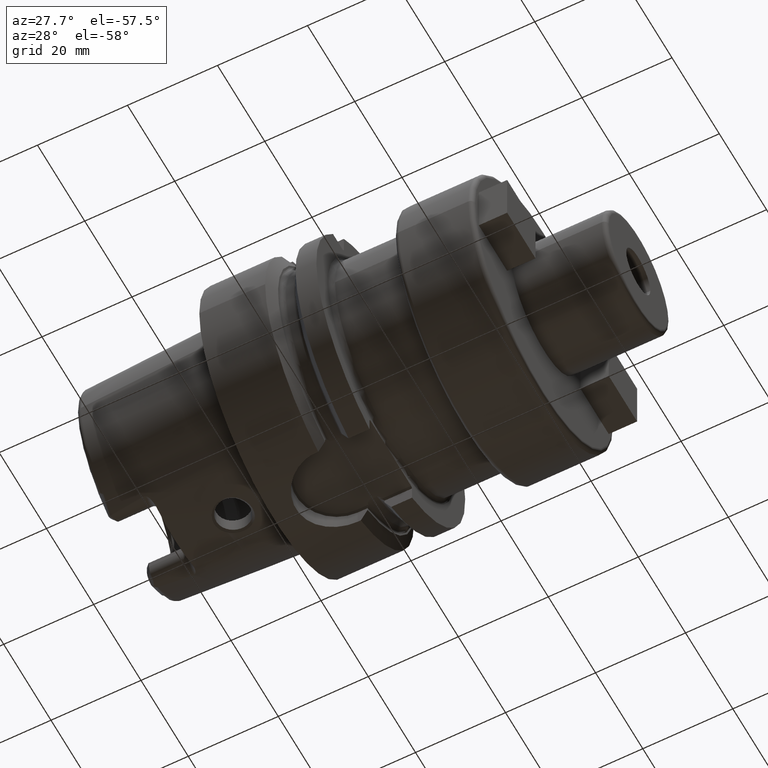
[diagram: clean part render]
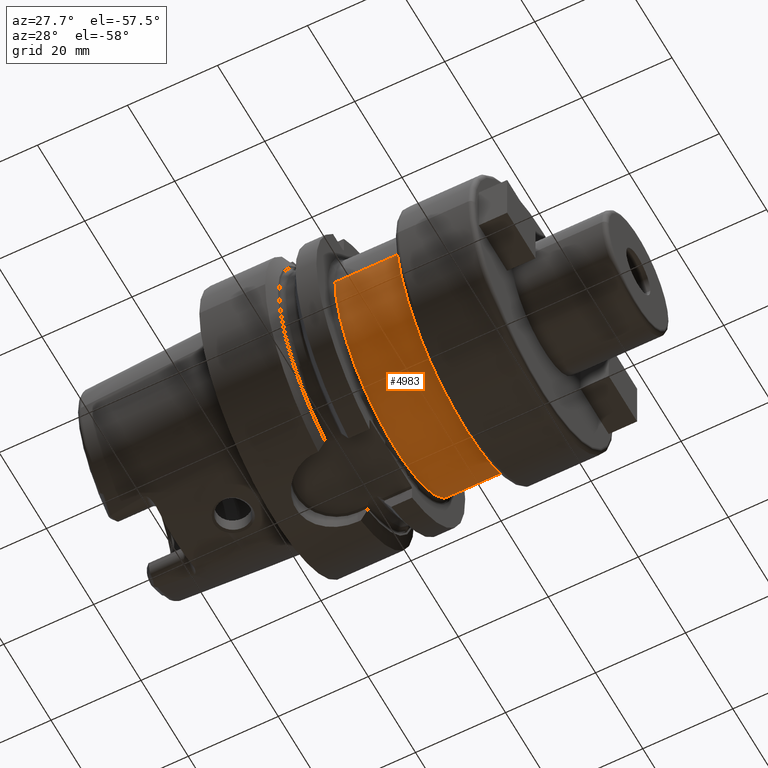
[diagram: same view with one face highlighted and labeled with its STEP entity id]
A machine part, auxiliary view. The second image highlights one B-rep face of the part: STEP entity #4983.
In plain terms, the highlighted cylindrical surface (partial cylindrical patch) has radius 25.5 mm, axis along (1, 0, 0).
Its self-contained STEP definition (entity closure, byte-faithful):
#1421=CARTESIAN_POINT('',(2.7E1,0.E0,0.E0));
#1422=DIRECTION('',(1.E0,0.E0,0.E0));
#1423=DIRECTION('',(0.E0,-1.E0,0.E0));
#1424=AXIS2_PLACEMENT_3D('',#1421,#1422,#1423);
#1450=CARTESIAN_POINT('',(4.15E1,0.E0,0.E0));
#1451=DIRECTION('',(-1.E0,0.E0,0.E0));
#1452=DIRECTION('',(0.E0,1.E0,0.E0));
#1453=AXIS2_PLACEMENT_3D('',#1450,#1451,#1452);
#1455=DIRECTION('',(1.E0,0.E0,6.572574142027E-14));
#1456=VECTOR('',#1455,1.45E1);
#1457=CARTESIAN_POINT('',(2.7E1,2.55E1,-2.658297192799E-13));
#1458=LINE('',#1457,#1456);
#1459=DIRECTION('',(1.E0,0.E0,-5.925695159419E-14));
#1460=VECTOR('',#1459,1.45E1);
#1461=CARTESIAN_POINT('',(2.7E1,-2.55E1,1.738605785752E-13));
#1462=LINE('',#1461,#1460);
#3355=CARTESIAN_POINT('',(4.15E1,2.55E1,0.E0));
#3356=CARTESIAN_POINT('',(4.15E1,-2.55E1,0.E0));
#3357=VERTEX_POINT('',#3355);
#3358=VERTEX_POINT('',#3356);
#3366=CARTESIAN_POINT('',(2.7E1,2.55E1,0.E0));
#3368=VERTEX_POINT('',#3366);
#3369=CARTESIAN_POINT('',(2.7E1,-2.55E1,0.E0));
#3370=VERTEX_POINT('',#3369);
#4969=CARTESIAN_POINT('',(2.5175E1,0.E0,0.E0));
#4970=DIRECTION('',(1.E0,0.E0,0.E0));
#4971=DIRECTION('',(0.E0,-1.E0,0.E0));
#4972=AXIS2_PLACEMENT_3D('',#4969,#4970,#4971);
#4973=CYLINDRICAL_SURFACE('',#4972,2.55E1);
#4975=ORIENTED_EDGE('',*,*,#4974,.F.);
#4977=ORIENTED_EDGE('',*,*,#4976,.F.);
#4978=ORIENTED_EDGE('',*,*,#4953,.F.);
#4980=ORIENTED_EDGE('',*,*,#4979,.T.);
#4981=EDGE_LOOP('',(#4975,#4977,#4978,#4980));
#4982=FACE_OUTER_BOUND('',#4981,.F.);
#4983=ADVANCED_FACE('',(#4982),#4973,.T.);
#1425=CIRCLE('',#1424,2.55E1);
#1454=CIRCLE('',#1453,2.55E1);
#4953=EDGE_CURVE('',#3370,#3368,#1425,.T.);
#4974=EDGE_CURVE('',#3357,#3358,#1454,.T.);
#4976=EDGE_CURVE('',#3368,#3357,#1458,.T.);
#4979=EDGE_CURVE('',#3370,#3358,#1462,.T.);